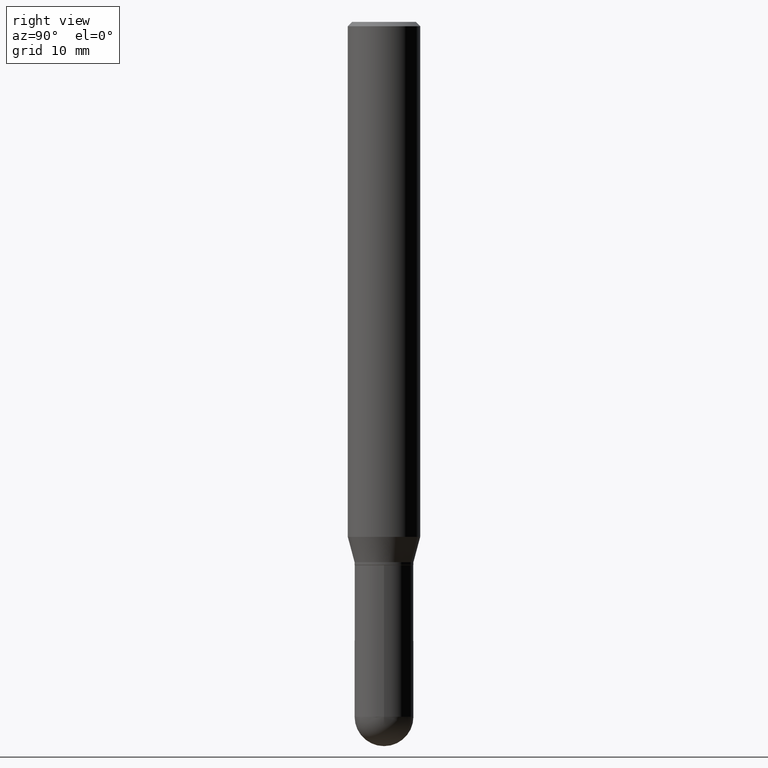
[diagram: clean part render]
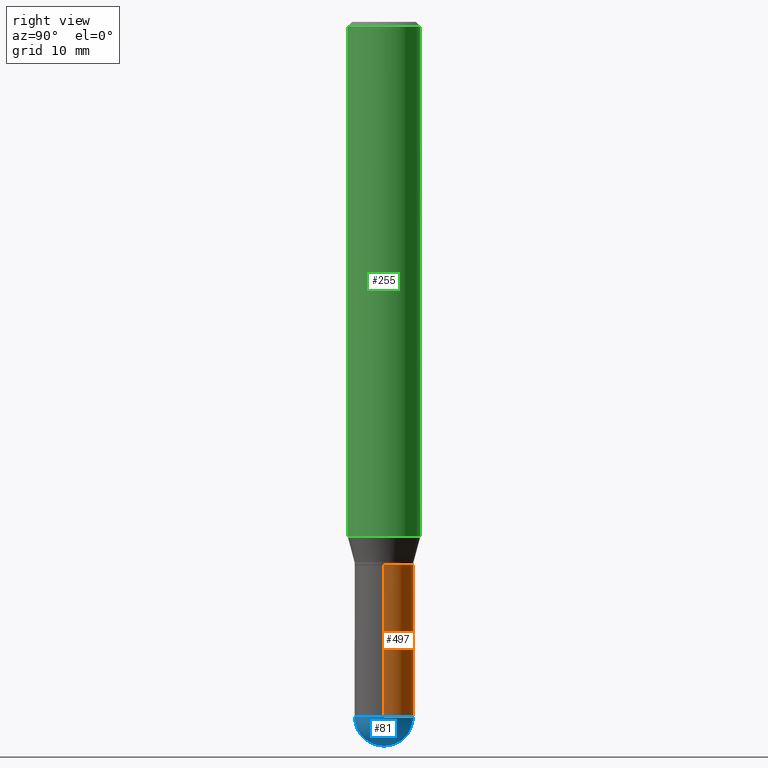
[diagram: same view with three faces highlighted in distinct colors, each labeled with its STEP entity id]
A machine part, right view with three faces highlighted in distinct colors.
Their STEP definitions:

[orange] entity #497 — the highlighted cylindrical surface (edge-blend (fillet) strip) has radius 2.5794 mm, axis along (-0, 0, 1).
#2 = DIRECTION ( 'NONE',  ( 1.000000000000000000, -6.982962677686258033E-15, 0.000000000000000000 ) ) ;
#9 = CARTESIAN_POINT ( 'NONE',  ( 0.1015500000000000985, -8.169455323658661228E-15, -2.398450000000000415 ) ) ;
#15 = CIRCLE ( 'NONE', #320, 0.1015500000000000985 ) ;
#19 = ORIENTED_EDGE ( 'NONE', *, *, #26, .F. ) ;
#26 = EDGE_CURVE ( 'NONE', #209, #344, #445, .T. ) ;
#33 = EDGE_LOOP ( 'NONE', ( #509, #272, #19, #284, #191 ) ) ;
#47 = CARTESIAN_POINT ( 'NONE',  ( 0.1015500000000000708, -7.091198599190408807E-16, 4.951757515820776576E-30 ) ) ;
#68 = LINE ( 'NONE', #306, #359 ) ;
#83 = CARTESIAN_POINT ( 'NONE',  ( 4.585254011597131119E-29, -6.546527510330898707E-15, -1.875000000000000000 ) ) ;
#93 = DIRECTION ( 'NONE',  ( -2.445468806185136597E-29, 3.491481338843145583E-15, 1.000000000000000000 ) ) ;
#99 = DIRECTION ( 'NONE',  ( -2.445468806185136877E-29, 3.491481338843145188E-15, 1.000000000000000000 ) ) ;
#110 = CARTESIAN_POINT ( 'NONE',  ( 0.000000000000000000, 0.000000000000000000, 0.000000000000000000 ) ) ;
#113 = DIRECTION ( 'NONE',  ( 1.000000000000000000, -6.982962677686266711E-15, 4.876176775795936353E-29 ) ) ;
#133 = VECTOR ( 'NONE', #334, 39.37007874015748143 ) ;
#145 = CARTESIAN_POINT ( 'NONE',  ( -0.1015500000000000985, -6.738779315575238500E-15, -2.398450000000000415 ) ) ;
#170 = EDGE_CURVE ( 'NONE', #341, #344, #68, .T. ) ;
#181 = EDGE_CURVE ( 'NONE', #386, #209, #485, .T. ) ;
#191 = ORIENTED_EDGE ( 'NONE', *, *, #247, .T. ) ;
#197 = CYLINDRICAL_SURFACE ( 'NONE', #321, 0.1015500000000000708 ) ;
#199 = DIRECTION ( 'NONE',  ( 1.000000000000000000, -6.982962677686258033E-15, 0.000000000000000000 ) ) ;
#209 = VERTEX_POINT ( 'NONE', #399 ) ;
#228 = CARTESIAN_POINT ( 'NONE',  ( -0.1015500000000000708, -6.738779315575238500E-15, -1.875000000000000000 ) ) ;
#240 = DIRECTION ( 'NONE',  ( -2.445468806185136597E-29, 3.491481338843145583E-15, 1.000000000000000000 ) ) ;
#247 = EDGE_CURVE ( 'NONE', #386, #460, #15, .T. ) ;
#272 = ORIENTED_EDGE ( 'NONE', *, *, #170, .T. ) ;
#284 = ORIENTED_EDGE ( 'NONE', *, *, #181, .F. ) ;
#306 = CARTESIAN_POINT ( 'NONE',  ( -0.1015500000000000708, 7.215561481643822416E-16, -4.995178584153860605E-30 ) ) ;
#310 = DIRECTION ( 'NONE',  ( -2.445468806185136597E-29, 3.491481338843145583E-15, 1.000000000000000000 ) ) ;
#320 = AXIS2_PLACEMENT_3D ( 'NONE', #378, #310, #199 ) ;
#321 = AXIS2_PLACEMENT_3D ( 'NONE', #110, #342, #113 ) ;
#334 = DIRECTION ( 'NONE',  ( -2.445468806185136877E-29, 3.491481338843145188E-15, 1.000000000000000000 ) ) ;
#341 = VERTEX_POINT ( 'NONE', #145 ) ;
#342 = DIRECTION ( 'NONE',  ( -2.445468806185136597E-29, 3.491481338843145583E-15, 1.000000000000000000 ) ) ;
#344 = VERTEX_POINT ( 'NONE', #228 ) ;
#359 = VECTOR ( 'NONE', #99, 39.37007874015748143 ) ;
#371 = AXIS2_PLACEMENT_3D ( 'NONE', #83, #240, #426 ) ;
#378 = CARTESIAN_POINT ( 'NONE',  ( 5.865334658194741045E-29, -8.374143417148343763E-15, -2.398450000000000415 ) ) ;
#386 = VERTEX_POINT ( 'NONE', #9 ) ;
#399 = CARTESIAN_POINT ( 'NONE',  ( 0.1015500000000000708, -7.255647370249939489E-15, -1.875000000000000000 ) ) ;
#400 = EDGE_CURVE ( 'NONE', #460, #341, #438, .T. ) ;
#408 = CARTESIAN_POINT ( 'NONE',  ( 7.091198599190993550E-16, 0.1015499999999916747, -2.398450000000000415 ) ) ;
#426 = DIRECTION ( 'NONE',  ( 1.000000000000000000, -6.982962677686269866E-15, 0.000000000000000000 ) ) ;
#438 = CIRCLE ( 'NONE', #504, 0.1015500000000000985 ) ;
#445 = CIRCLE ( 'NONE', #371, 0.1015500000000000708 ) ;
#452 = FACE_OUTER_BOUND ( 'NONE', #33, .T. ) ;
#460 = VERTEX_POINT ( 'NONE', #408 ) ;
#480 = CARTESIAN_POINT ( 'NONE',  ( 5.865334658194741045E-29, -8.374143417148343763E-15, -2.398450000000000415 ) ) ;
#485 = LINE ( 'NONE', #47, #133 ) ;
#497 = ADVANCED_FACE ( 'NONE', ( #452 ), #197, .T. ) ;
#504 = AXIS2_PLACEMENT_3D ( 'NONE', #480, #93, #2 ) ;
#509 = ORIENTED_EDGE ( 'NONE', *, *, #400, .T. ) ;

[blue] entity #81 — the highlighted spherical surface has radius 2.5794 mm.
#9 = CARTESIAN_POINT ( 'NONE',  ( 0.1015500000000000985, -8.169455323658661228E-15, -2.398450000000000415 ) ) ;
#15 = CIRCLE ( 'NONE', #320, 0.1015500000000000985 ) ;
#30 = EDGE_LOOP ( 'NONE', ( #210, #235, #354, #468 ) ) ;
#44 = AXIS2_PLACEMENT_3D ( 'NONE', #233, #193, #223 ) ;
#54 = SPHERICAL_SURFACE ( 'NONE', #94, 0.1015499999999999736 ) ;
#81 = ADVANCED_FACE ( 'NONE', ( #332 ), #54, .T. ) ;
#92 = CARTESIAN_POINT ( 'NONE',  ( 5.899408758987094508E-29, -8.325347365436315775E-15, -2.398450000000000415 ) ) ;
#94 = AXIS2_PLACEMENT_3D ( 'NONE', #92, #219, #214 ) ;
#126 = CIRCLE ( 'NONE', #44, 0.1015500000000000985 ) ;
#144 = DIRECTION ( 'NONE',  ( -1.000000000000000000, 7.105427357601001070E-15, -4.926315508542082329E-29 ) ) ;
#184 = DIRECTION ( 'NONE',  ( 1.000000000000000000, -6.982962677686265922E-15, 4.883557194083112340E-29 ) ) ;
#193 = DIRECTION ( 'NONE',  ( -2.445468806185136597E-29, 3.491481338843145583E-15, 1.000000000000000000 ) ) ;
#196 = CIRCLE ( 'NONE', #297, 0.1015499999999999736 ) ;
#199 = DIRECTION ( 'NONE',  ( 1.000000000000000000, -6.982962677686258033E-15, 0.000000000000000000 ) ) ;
#203 = EDGE_CURVE ( 'NONE', #299, #460, #258, .T. ) ;
#210 = ORIENTED_EDGE ( 'NONE', *, *, #512, .F. ) ;
#214 = DIRECTION ( 'NONE',  ( 6.982962677686266711E-15, 1.000000000000000000, -2.690150658458162309E-15 ) ) ;
#219 = DIRECTION ( 'NONE',  ( -1.000000000000000000, 6.982962677686266711E-15, -4.883557194083112901E-29 ) ) ;
#223 = DIRECTION ( 'NONE',  ( 1.000000000000000000, -6.982962677686258033E-15, 0.000000000000000000 ) ) ;
#233 = CARTESIAN_POINT ( 'NONE',  ( 5.865334658194741045E-29, -8.374143417148343763E-15, -2.398450000000000415 ) ) ;
#235 = ORIENTED_EDGE ( 'NONE', *, *, #203, .T. ) ;
#247 = EDGE_CURVE ( 'NONE', #386, #460, #15, .T. ) ;
#258 = CIRCLE ( 'NONE', #396, 0.1015499999999999736 ) ;
#260 = CARTESIAN_POINT ( 'NONE',  ( 5.899408758987094508E-29, -8.325347365436315775E-15, -2.398450000000000415 ) ) ;
#285 = CARTESIAN_POINT ( 'NONE',  ( -7.215561481643230770E-16, -0.1015500000000083697, -2.398449999999999971 ) ) ;
#297 = AXIS2_PLACEMENT_3D ( 'NONE', #340, #144, #450 ) ;
#299 = VERTEX_POINT ( 'NONE', #415 ) ;
#310 = DIRECTION ( 'NONE',  ( -2.445468806185136597E-29, 3.491481338843145583E-15, 1.000000000000000000 ) ) ;
#320 = AXIS2_PLACEMENT_3D ( 'NONE', #378, #310, #199 ) ;
#332 = FACE_OUTER_BOUND ( 'NONE', #30, .T. ) ;
#340 = CARTESIAN_POINT ( 'NONE',  ( 5.899408758987094508E-29, -8.325347365436315775E-15, -2.398450000000000415 ) ) ;
#354 = ORIENTED_EDGE ( 'NONE', *, *, #247, .F. ) ;
#378 = CARTESIAN_POINT ( 'NONE',  ( 5.865334658194741045E-29, -8.374143417148343763E-15, -2.398450000000000415 ) ) ;
#386 = VERTEX_POINT ( 'NONE', #9 ) ;
#396 = AXIS2_PLACEMENT_3D ( 'NONE', #260, #184, #482 ) ;
#408 = CARTESIAN_POINT ( 'NONE',  ( 7.091198599190993550E-16, 0.1015499999999916747, -2.398450000000000415 ) ) ;
#415 = CARTESIAN_POINT ( 'NONE',  ( 6.152088223088502938E-29, -8.673689151273167162E-15, -2.500000000000000000 ) ) ;
#420 = VERTEX_POINT ( 'NONE', #285 ) ;
#450 = DIRECTION ( 'NONE',  ( -7.105427357601001070E-15, -1.000000000000000000, 0.000000000000000000 ) ) ;
#460 = VERTEX_POINT ( 'NONE', #408 ) ;
#464 = EDGE_CURVE ( 'NONE', #420, #386, #126, .T. ) ;
#468 = ORIENTED_EDGE ( 'NONE', *, *, #464, .F. ) ;
#482 = DIRECTION ( 'NONE',  ( 6.982962677686266711E-15, 1.000000000000000000, 0.000000000000000000 ) ) ;
#512 = EDGE_CURVE ( 'NONE', #299, #420, #196, .T. ) ;

[green] entity #255 — the highlighted cylindrical surface (edge-blend (fillet) strip) has radius 3.175 mm, axis along (-0, 0, 1).
#14 = CARTESIAN_POINT ( 'NONE',  ( -8.728703347107832402E-16, -0.1250000000000000000, 4.364323517735584479E-16 ) ) ;
#45 = VERTEX_POINT ( 'NONE', #238 ) ;
#70 = DIRECTION ( 'NONE',  ( -6.982962677686265922E-15, -1.000000000000000000, 3.483106191921935554E-15 ) ) ;
#108 = CARTESIAN_POINT ( 'NONE',  ( 8.881784197001684225E-16, 0.1249999999999937828, -1.777483408562510636 ) ) ;
#111 = VERTEX_POINT ( 'NONE', #183 ) ;
#114 = CARTESIAN_POINT ( 'NONE',  ( 8.881784197001688169E-16, 0.1249999999999999445, -0.01500000000000043486 ) ) ;
#147 = ORIENTED_EDGE ( 'NONE', *, *, #270, .T. ) ;
#148 = CARTESIAN_POINT ( 'NONE',  ( 0.000000000000000000, 0.000000000000000000, 0.000000000000000000 ) ) ;
#151 = DIRECTION ( 'NONE',  ( -2.445484535067430768E-29, 3.491458814188467188E-15, 1.000000000000000000 ) ) ;
#165 = AXIS2_PLACEMENT_3D ( 'NONE', #231, #463, #455 ) ;
#183 = CARTESIAN_POINT ( 'NONE',  ( -8.728703347107828458E-16, -0.1250000000000000555, -0.01499999999999956403 ) ) ;
#185 = AXIS2_PLACEMENT_3D ( 'NONE', #148, #500, #302 ) ;
#192 = CARTESIAN_POINT ( 'NONE',  ( 3.668226802601146923E-31, -5.237188221282701522E-17, -0.01499999999999999944 ) ) ;
#231 = CARTESIAN_POINT ( 'NONE',  ( 4.346808186978562239E-29, -6.206010113899336320E-15, -1.777483408562509970 ) ) ;
#238 = CARTESIAN_POINT ( 'NONE',  ( -8.728703347107399515E-16, -0.1250000000000062172, -1.777483408562509526 ) ) ;
#255 = ADVANCED_FACE ( 'NONE', ( #269 ), #461, .T. ) ;
#256 = LINE ( 'NONE', #14, #289 ) ;
#265 = VECTOR ( 'NONE', #151, 39.37007874015748143 ) ;
#267 = DIRECTION ( 'NONE',  ( -2.445484535067431049E-29, 3.491458814188467583E-15, 1.000000000000000000 ) ) ;
#269 = FACE_OUTER_BOUND ( 'NONE', #431, .T. ) ;
#270 = EDGE_CURVE ( 'NONE', #45, #278, #314, .T. ) ;
#278 = VERTEX_POINT ( 'NONE', #108 ) ;
#283 = EDGE_CURVE ( 'NONE', #111, #355, #446, .T. ) ;
#289 = VECTOR ( 'NONE', #333, 39.37007874015748143 ) ;
#302 = DIRECTION ( 'NONE',  ( -6.982962677686265922E-15, -1.000000000000000000, 3.491458814188467583E-15 ) ) ;
#314 = CIRCLE ( 'NONE', #165, 0.1250000000000000000 ) ;
#333 = DIRECTION ( 'NONE',  ( -2.445484535067430768E-29, 3.491458814188467188E-15, 1.000000000000000000 ) ) ;
#335 = EDGE_CURVE ( 'NONE', #278, #355, #494, .T. ) ;
#352 = ORIENTED_EDGE ( 'NONE', *, *, #335, .T. ) ;
#355 = VERTEX_POINT ( 'NONE', #114 ) ;
#375 = ORIENTED_EDGE ( 'NONE', *, *, #403, .F. ) ;
#380 = CARTESIAN_POINT ( 'NONE',  ( 8.881784197001251337E-16, 0.1250000000000000000, -4.364323517735584479E-16 ) ) ;
#403 = EDGE_CURVE ( 'NONE', #45, #111, #256, .T. ) ;
#431 = EDGE_LOOP ( 'NONE', ( #147, #352, #508, #375 ) ) ;
#446 = CIRCLE ( 'NONE', #457, 0.1250000000000000000 ) ;
#455 = DIRECTION ( 'NONE',  ( -6.982962677686265922E-15, -1.000000000000000000, 4.370956789862821150E-15 ) ) ;
#457 = AXIS2_PLACEMENT_3D ( 'NONE', #192, #267, #70 ) ;
#461 = CYLINDRICAL_SURFACE ( 'NONE', #185, 0.1250000000000000000 ) ;
#463 = DIRECTION ( 'NONE',  ( -2.445484535067431049E-29, 3.491458814188467583E-15, 1.000000000000000000 ) ) ;
#494 = LINE ( 'NONE', #380, #265 ) ;
#500 = DIRECTION ( 'NONE',  ( -2.445484535067431049E-29, 3.491458814188467583E-15, 1.000000000000000000 ) ) ;
#508 = ORIENTED_EDGE ( 'NONE', *, *, #283, .F. ) ;